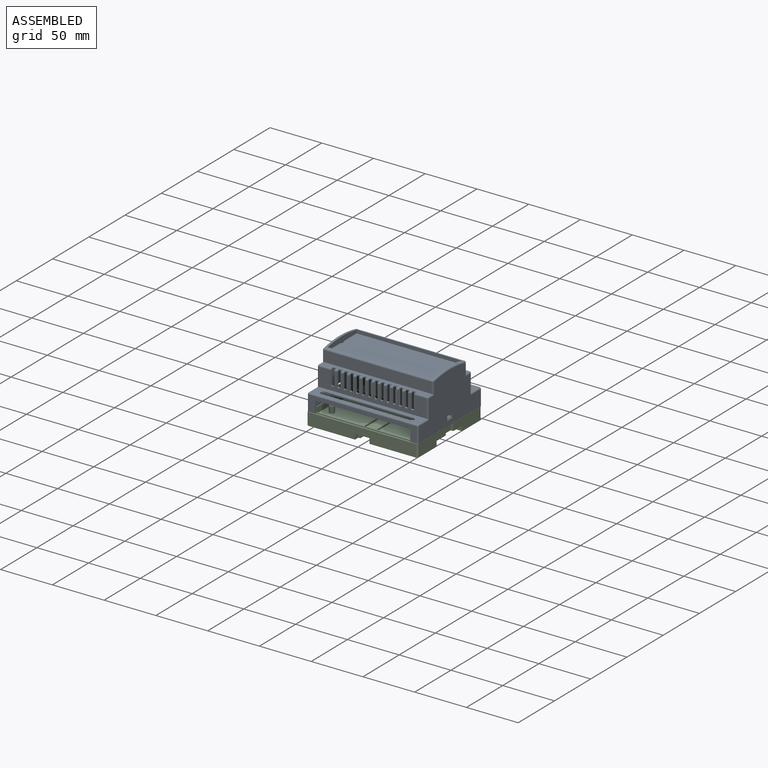
[diagram: assembled view]
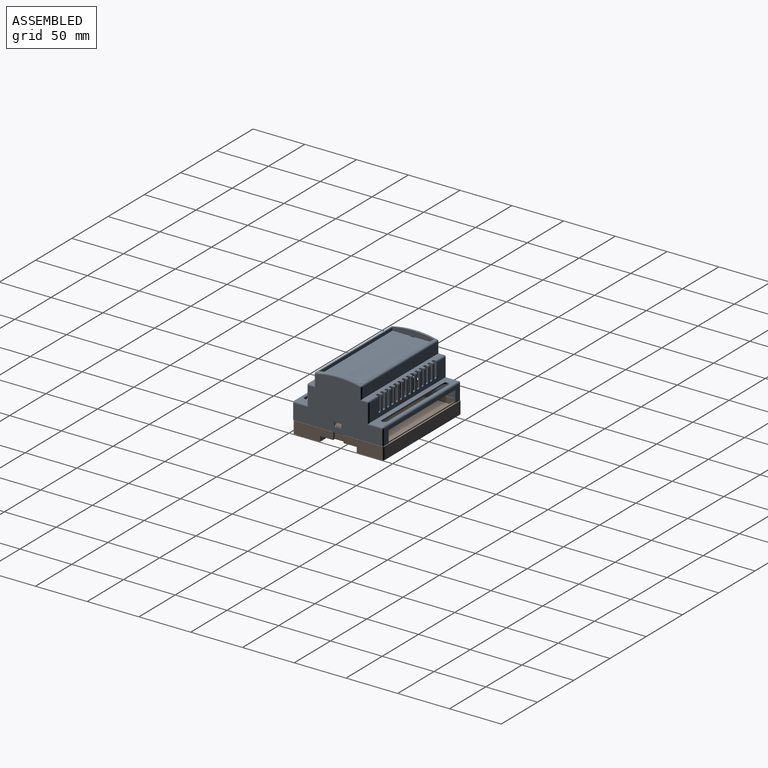
[diagram: assembled view, second angle]
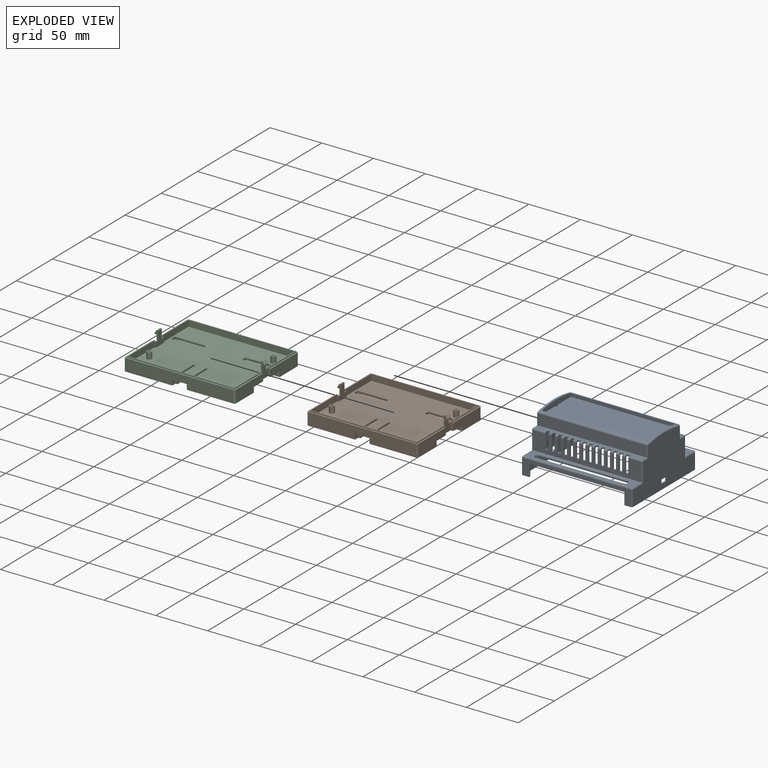
[diagram: exploded view]
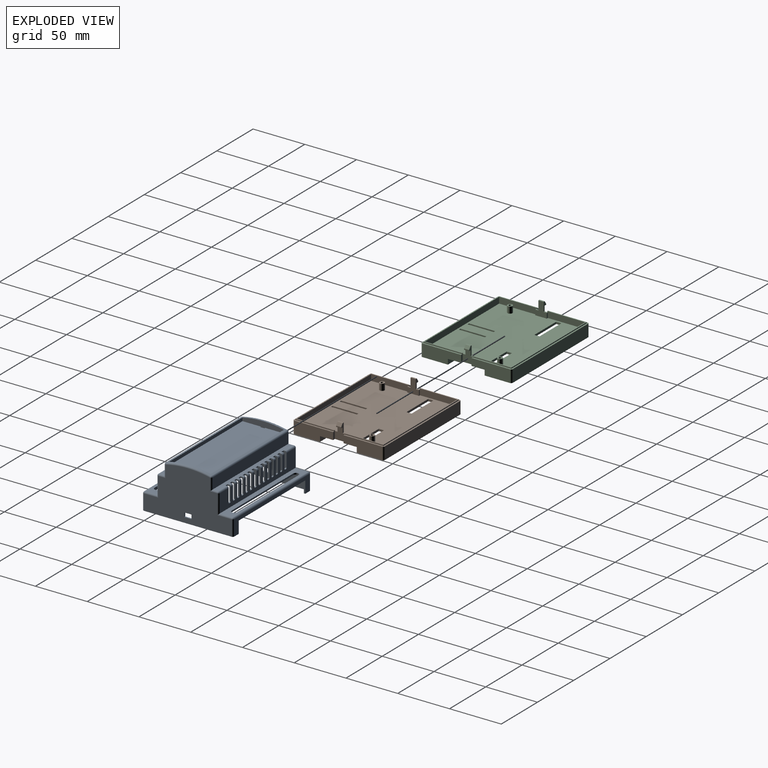
[diagram: exploded view, second angle]
FCSTD DOCUMENT  (FreeCAD 1.0R39109 (Git))
Label: 2.0
License: All rights reserved
LicenseURL: https://en.wikipedia.org/wiki/All_rights_reserved
objects: App::Link×3, Assembly::JointGroup×2, Assembly::AssemblyObject×2, App::FeaturePython×1
EXTERNAL_REF file=2.FCStd obj=Body
EXTERNAL_REF file=1.FCStd obj=Body001

FEATURE [Assembly::JointGroup] Joints001
FEATURE [Assembly::AssemblyObject] Assembly001
  Group = -> [Joints001]
  Origin = -> Origin001
  Type = Assembly
FEATURE [App::Link] Cuerpo
  LinkedObject = -> <external 2.FCStd>#Body
FEATURE [App::FeaturePython] GroundedJoint  # Assembly grounded joint (typed FeaturePython)
  ObjectToGround = -> Cuerpo
FEATURE [Assembly::JointGroup] Joints
  Group = -> [GroundedJoint]
FEATURE [App::Link] Cuerpo001
  LinkedObject = -> <external 2.FCStd>#Body
FEATURE [App::Link] Body001
  LinkPlacement = pos=(53.9821,-0.170981,7.38278) rot=(0,0,-1;1.5708rad)
  LinkedObject = -> <external 1.FCStd>#Body001
  Placement = pos=(53.9821,-0.170981,7.38278) rot=(0,0,-1;1.5708rad)
FEATURE [Assembly::AssemblyObject] Assembly
  Group = -> [Joints,Assembly001,Cuerpo,GroundedJoint,Cuerpo001,Body001]
  Origin = -> Origin
  Type = Assembly

RESOLVED EXTERNAL PARTS (link-assembly join: the EXTERNAL_REF files above that resolve inside this repo's crawl, each included once):
---- part 1.FCStd = doc fcstd_2b78bb30a1ef ----
FCSTD DOCUMENT  (FreeCAD 1.0R39109 (Git))
Label: 1
License: All rights reserved
LicenseURL: https://en.wikipedia.org/wiki/All_rights_reserved
objects: Sketcher::SketchObject×15, PartDesign::Pad×8, PartDesign::Mirrored×7, PartDesign::Pocket×6, PartDesign::Fillet×3, PartDesign::Thickness×2, PartDesign::Plane×1, PartDesign::Body×1
note: 103 computed .brp shape members not serialized (recipe doc carries the construction recipe); baked Part::Feature solids carry a one-line shape summary decoded from their .brp

FEATURE [Sketcher::SketchObject] Sketch
  ArcFitTolerance = 1e-06
  AttachmentSupport = -> [XZ_Plane001]
  FullyConstrained = true
  MakeInternals = false
  MapMode = 5
  Placement = pos=(0,0,0) rot=(1,0,0;1.5708rad)
  sketch-geometry (12):
    g0: LineSegment StartX=-43.85 StartY=0 StartZ=0 EndX=43.85 EndY=0 EndZ=0
    g1: LineSegment StartX=-43.85 StartY=0 StartZ=0 EndX=-43.85 EndY=16.54 EndZ=0
    g2: LineSegment StartX=43.85 StartY=0 StartZ=0 EndX=43.85 EndY=16.54 EndZ=0
    g3: LineSegment StartX=-43.85 StartY=16.54 StartZ=0 EndX=-30 EndY=16.54 EndZ=0
    g4: LineSegment StartX=43.85 StartY=16.54 StartZ=0 EndX=30 EndY=16.54 EndZ=0
    g5: LineSegment StartX=-30 StartY=16.54 StartZ=0 EndX=-30 EndY=35.54 EndZ=0
    g6: LineSegment StartX=30 StartY=16.54 StartZ=0 EndX=30 EndY=35.54 EndZ=0
    g7: LineSegment StartX=-30 StartY=35.54 StartZ=0 EndX=-23 EndY=35.54 EndZ=0
    g8: LineSegment StartX=30 StartY=35.54 StartZ=0 EndX=23 EndY=35.54 EndZ=0
    g9: LineSegment StartX=23 StartY=35.54 StartZ=0 EndX=23 EndY=44.54 EndZ=0
    g10: LineSegment StartX=-23 StartY=35.54 StartZ=0 EndX=-23 EndY=44.54 EndZ=0
    g11: LineSegment StartX=-23 StartY=44.54 StartZ=0 EndX=23 EndY=44.54 EndZ=0
  constraints (36):
    c: Distance(g0) = 87.7
    c: PointOnObject(g0,g-1)
    c: PointOnObject(g0,g-1)
    c: Vertical(g1)
    c: Coincident(g1,g0)
    c: Vertical(g2)
    c: Coincident(g2,g0)
    c: Distance(g3) = 13.85
    c: Horizontal(g3)
    c: Coincident(g3,g1)
    c: Distance(g4) = 13.85
    c: Horizontal(g4)
    c: Coincident(g4,g2)
    c: Vertical(g5)
    c: Coincident(g5,g3)
    c: Vertical(g6)
    c: Coincident(g6,g4)
    c: Distance(g7) = 7
    c: Horizontal(g7)
    c: Coincident(g7,g5)
    c: Distance(g8) = 7
    c: Horizontal(g8)
    c: Coincident(g8,g6)
    c: Vertical(g9)
    c: Coincident(g9,g8)
    c: Vertical(g10)
    c: Coincident(g10,g7)
    c: Coincident(g11,g10)
    c: Coincident(g11,g9)
    c: Equal(g1,g2)
    c: Equal(g5,g6)
    c: Equal(g10,g9)
    c: Distance(g0,g11) = 44.54
    c: DistanceY(g1,g1) = 16.54
    c: Distance(g5,g0) = 35.54
    c: Distance(g10,g-2) = 23
FEATURE [PartDesign::Pad] Pad
  Direction = (0,-1,2e-16)
  Length = 107
  Length2 = 10
  Placement = pos=(0,0,0) rot=(1,0,0;1.5708rad)
  Profile = -> Sketch
  ReferenceAxis = -> Sketch [N_Axis]
  Refine = true
  Suppressed = false
  Type = 0
FEATURE [PartDesign::Thickness] Thickness
  Base = -> Pad
  BaseFeature = -> Pad
  Intersection = false
  Join = 0
  Mode = 0
  Placement = pos=(0,0,0) rot=(1,0,0;1.5708rad)
  Refine = true
  Reversed = true
  SupportTransform = false
  Suppressed = false
  Value = 1.4
FEATURE [PartDesign::Thickness] Thickness001
  Base = -> Thickness [Face1]
  BaseFeature = -> Thickness
  Intersection = false
  Join = 0
  Mode = 0
  Refine = true
  Reversed = true
  SupportTransform = false
  Suppressed = false
  Value = 1.4
FEATURE [Sketcher::SketchObject] Sketch001
  ArcFitTolerance = 1e-06
  AttachmentSupport = -> [Thickness001]
  FullyConstrained = true
  MakeInternals = false
  MapMode = 5
  Placement = pos=(-43.85,0,0) rot=(0.57735,-0.57735,-0.57735;2.0944rad)
  sketch-geometry (4):
    g0: LineSegment StartX=7.575 StartY=0 StartZ=0 EndX=99.425 EndY=0 EndZ=0
    g1: LineSegment StartX=99.425 StartY=0 StartZ=0 EndX=99.425 EndY=11.6 EndZ=0
    g2: LineSegment StartX=99.425 StartY=11.6 StartZ=0 EndX=7.575 EndY=11.6 EndZ=0
    g3: LineSegment StartX=7.575 StartY=11.6 StartZ=0 EndX=7.575 EndY=0 EndZ=0
  constraints (12):
    c: Coincident(g0,g1)
    c: Coincident(g1,g2)
    c: Coincident(g2,g3)
    c: Coincident(g3,g0)
    c: Horizontal(g0)
    c: Horizontal(g2)
    c: Vertical(g1)
    c: Vertical(g3)
    c: PointOnObject(g0,g-1)
    c: DistanceX(g2,g2) = 91.85
    c: DistanceY(g1,g1) = 11.6
    c: DistanceX(g-1,g0) = 7.575
FEATURE [PartDesign::Pocket] Pocket
  BaseFeature = -> Thickness001
  Direction = (1,0,0)
  Length = 5
  Length2 = 5
  Profile = -> Sketch001
  ReferenceAxis = -> Sketch001 [N_Axis]
  Refine = true
  Suppressed = false
  Type = 1
FEATURE [Sketcher::SketchObject] Sketch002
  ArcFitTolerance = 1e-06
  AttachmentSupport = -> [Pocket]
  FullyConstrained = true
  MakeInternals = false
  MapMode = 5
  Placement = pos=(0,4.2e-15,0) rot=(0,0.707107,0.707107;3.14159rad)
  sketch-geometry (4):
    g0: LineSegment StartX=-23 StartY=44.54 StartZ=0 EndX=23 EndY=44.54 EndZ=0
    g1: LineSegment StartX=-23 StartY=44.54 StartZ=0 EndX=-23 EndY=47.04 EndZ=0
    g2: LineSegment StartX=23 StartY=44.54 StartZ=0 EndX=23 EndY=47.04 EndZ=0
    g3: ArcOfCircle CenterX=1.7e-15 CenterY=-46.0243 CenterZ=0 NormalX=0 NormalY=0 NormalZ=1 AngleXU=0 Radius=95.8643 StartAngle=1.32851 EndAngle=1.81308
  constraints (13):
    c: Distance(g0) = 46
    c: Horizontal(g0)
    c: Distance(g-1,g0) = 44.54
    c: Distance(g0,g-2) = 23
    c: Distance(g1) = 2.5
    c: Coincident(g1,g0)
    c: Vertical(g1)
    c: Distance(g2) = 2.5
    c: Coincident(g2,g0)
    c: Vertical(g2)
    c: Coincident(g3,g1)
    c: Coincident(g3,g2)
    c: Distance(g3,g0) = -5.3
FEATURE [PartDesign::Pad] Pad001
  BaseFeature = -> Pocket
  Direction = (0,1,-2e-16)
  Length = 107
  Length2 = 10
  Profile = -> Sketch002
  ReferenceAxis = -> Sketch002 [N_Axis]
  Refine = true
  Suppressed = false
  Type = 0
FEATURE [Sketcher::SketchObject] Sketch003
  ArcFitTolerance = 1e-06
  AttachmentSupport = -> [Pad001]
  ExternalGeometry = -> [Pad001]
  FullyConstrained = true
  MakeInternals = false
  MapMode = 5
  Placement = pos=(0,4.2e-15,0) rot=(0,0.707107,0.707107;3.14159rad)
  sketch-geometry (4):
    g0: LineSegment StartX=-23 StartY=44.54 StartZ=0 EndX=-23 EndY=47.04 EndZ=0
    g1: LineSegment StartX=23 StartY=44.54 StartZ=0 EndX=23 EndY=47.04 EndZ=0
    g2: ArcOfCircle CenterX=4.82e-14 CenterY=-46.0243 CenterZ=0 NormalX=0 NormalY=0 NormalZ=1 AngleXU=0 Radius=95.8643 StartAngle=1.32851 EndAngle=1.81308
    g3: LineSegment StartX=-23 StartY=44.54 StartZ=0 EndX=23 EndY=44.54 EndZ=0
  constraints (9):
    c: Distance(g0) = 2.5
    c: Coincident(g2,g0)
    c: Coincident(g2,g1)
    c: Coincident(g3,g-3)
    c: Coincident(g3,g-3)
    c: Perpendicular(g0,g3) = 4.71239
    c: Distance(g2,g3) = -5.3
    c: Perpendicular(g1,g3) = 4.71239
    c: DistanceY(g1,g1) = 2.5
FEATURE [PartDesign::Pad] Pad002
  BaseFeature = -> Pad001
  Direction = (0,1,-2e-16)
  Length = 3
  Length2 = 10
  Profile = -> Sketch003
  ReferenceAxis = -> Sketch003 [N_Axis]
  Refine = true
  Reversed = true
  Suppressed = false
  Type = 0
FEATURE [Sketcher::SketchObject] Sketch004
  ArcFitTolerance = 1e-06
  AttachmentSupport = -> [Pad002]
  ExternalGeometry = -> [Pad002]
  FullyConstrained = true
  MakeInternals = false
  MapMode = 5
  Placement = pos=(0,-107,0) rot=(1,0,0;1.5708rad)
  sketch-geometry (4):
    g0: LineSegment StartX=-23 StartY=44.54 StartZ=0 EndX=23 EndY=44.54 EndZ=0
    g1: LineSegment StartX=23 StartY=44.54 StartZ=0 EndX=23 EndY=47.04 EndZ=0
    g2: LineSegment StartX=-23 StartY=44.54 StartZ=0 EndX=-23 EndY=47.04 EndZ=0
    g3: ArcOfCircle CenterX=3.7756e-12 CenterY=-46.0243 CenterZ=0 NormalX=0 NormalY=0 NormalZ=1 AngleXU=0 Radius=95.8643 StartAngle=1.32851 EndAngle=1.81308
  constraints (9):
    c: Coincident(g0,g-5)
    c: Coincident(g0,g-6)
    c: Coincident(g1,g0)
    c: Coincident(g1,g-6)
    c: Coincident(g2,g0)
    c: Coincident(g2,g-5)
    c: Coincident(g3,g2)
    c: Coincident(g3,g1)
    c: Tangent(g3,g-4)
FEATURE [PartDesign::Pad] Pad003
  BaseFeature = -> Pad002
  Direction = (0,-1,2e-16)
  Length = 3
  Length2 = 10
  Profile = -> Sketch004
  ReferenceAxis = -> Sketch004 [N_Axis]
  Refine = true
  Reversed = true
  Suppressed = false
  Type = 0
FEATURE [Sketcher::SketchObject] Sketch005
  ArcFitTolerance = 1e-06
  AttachmentSupport = -> [Pad003]
  ExternalGeometry = -> [Pad003]
  FullyConstrained = true
  MakeInternals = false
  MapMode = 5
  Placement = pos=(23,-8.5e-15,1.304e-13) rot=(0.57735,0.57735,0.57735;2.0944rad)
  sketch-geometry (4):
    g0: LineSegment StartX=-104 StartY=49.84 StartZ=0 EndX=-104 EndY=44.54 EndZ=0
    g1: LineSegment StartX=-104 StartY=44.54 StartZ=0 EndX=-3 EndY=44.54 EndZ=0
    g2: LineSegment StartX=-3 StartY=49.84 StartZ=0 EndX=-3 EndY=44.54 EndZ=0
    g3: LineSegment StartX=-104 StartY=49.84 StartZ=0 EndX=-3 EndY=49.84 EndZ=0
  constraints (8):
    c: Coincident(g0,g-5)
    c: Coincident(g0,g-3)
    c: Coincident(g1,g0)
    c: Coincident(g1,g-3)
    c: Coincident(g2,g-4)
    c: Coincident(g2,g1)
    c: Coincident(g3,g0)
    c: Coincident(g3,g2)
FEATURE [PartDesign::Pad] Pad004
  BaseFeature = -> Pad003
  Direction = (1,0,5.8e-15)
  Length = 3
  Length2 = 10
  Profile = -> Sketch005
  ReferenceAxis = -> Sketch005 [N_Axis]
  Refine = true
  Reversed = true
  Suppressed = false
  Type = 0
FEATURE [PartDesign::Mirrored] Mirrored
  BaseFeature = -> Pad004
  MirrorPlane = -> YZ_Plane001
  Originals = -> [Pad004]
  Refine = true
  Suppressed = false
  TransformMode = 0
FEATURE [Sketcher::SketchObject] Sketch006
  ArcFitTolerance = 1e-06
  AttachmentSupport = -> [Mirrored]
  FullyConstrained = true
  MakeInternals = false
  MapMode = 5
  Placement = pos=(0,7.3e-15,16.54) rot=(0,0,1;0rad)
  sketch-geometry (4):
    g0: ArcOfCircle CenterX=37.3 CenterY=-11 CenterZ=0 NormalX=0 NormalY=0 NormalZ=1 AngleXU=0 Radius=2.6 StartAngle=2.2037e-12 EndAngle=3.14159
    g1: ArcOfCircle CenterX=37.3 CenterY=-96 CenterZ=0 NormalX=0 NormalY=0 NormalZ=1 AngleXU=0 Radius=2.6 StartAngle=3.14159 EndAngle=6.28319
    g2: LineSegment StartX=39.9 StartY=-11 StartZ=0 EndX=39.9 EndY=-96 EndZ=0
    g3: LineSegment StartX=34.7 StartY=-11 StartZ=0 EndX=34.7 EndY=-96 EndZ=0
  constraints (10):
    c: Tangent(g0,g2) = 1.5708
    c: Tangent(g0,g3) = -1.5708
    c: Tangent(g1,g2) = 1.5708
    c: Tangent(g1,g3) = -1.5708
    c: Equal(g0,g1)
    c: Vertical(g2)
    c: Distance(g2,g3) = 5.2
    c: DistanceY(g2,g2) = 85
    c: Distance(g0,g-2) = 37.3
    c: Distance(g0,g-1) = 11
FEATURE [PartDesign::Pocket] Pocket001
  BaseFeature = -> Mirrored
  Direction = (0,0,-1)
  Length = 5
  Length2 = 5
  Profile = -> Sketch006
  ReferenceAxis = -> Sketch006 [N_Axis]
  Refine = true
  Suppressed = false
  Type = 0
FEATURE [PartDesign::Mirrored] Mirrored001
  BaseFeature = -> Pocket001
  MirrorPlane = -> YZ_Plane001
  Originals = -> [Pocket001]
  Refine = true
  Suppressed = false
  TransformMode = 0
FEATURE [Sketcher::SketchObject] Sketch007
  ArcFitTolerance = 1e-06
  AttachmentSupport = -> [Mirrored001]
  ExternalGeometry = -> [Mirrored001]
  FullyConstrained = true
  MakeInternals = false
  MapMode = 5
  Placement = pos=(30,0,0) rot=(0.57735,0.57735,0.57735;2.0944rad)
  sketch-geometry (57):
    g0: LineSegment [constr] StartX=-53.5 StartY=35.54 StartZ=0 EndX=-53.5 EndY=16.54 EndZ=0
    g1: LineSegment StartX=-16.4625 StartY=35.54 StartZ=0 EndX=-13.4995 EndY=35.54 EndZ=0
    g2: LineSegment StartX=-13.4995 StartY=35.54 StartZ=0 EndX=-13.4995 EndY=21.04 EndZ=0
    g3: LineSegment StartX=-16.4625 StartY=35.54 StartZ=0 EndX=-16.4625 EndY=21.04 EndZ=0
    g4: ArcOfCircle CenterX=-14.981 CenterY=22.3836 CenterZ=0 NormalX=0 NormalY=0 NormalZ=1 AngleXU=0 Radius=2 StartAngle=3.8782 EndAngle=5.54658
    g5: LineSegment StartX=-22.3885 StartY=35.54 StartZ=0 EndX=-19.4255 EndY=35.54 EndZ=0
    g6: LineSegment StartX=-19.4255 StartY=35.54 StartZ=0 EndX=-19.4255 EndY=21.04 EndZ=0
    g7: LineSegment StartX=-22.3885 StartY=35.54 StartZ=0 EndX=-22.3885 EndY=21.04 EndZ=0
    g8: ArcOfCircle CenterX=-20.907 CenterY=22.3836 CenterZ=0 NormalX=0 NormalY=0 NormalZ=1 AngleXU=0 Radius=2 StartAngle=3.8782 EndAngle=5.54658
    g9: LineSegment StartX=-28.3145 StartY=35.54 StartZ=0 EndX=-25.3515 EndY=35.54 EndZ=0
    g10: LineSegment StartX=-25.3515 StartY=35.54 StartZ=0 EndX=-25.3515 EndY=21.04 EndZ=0
    g11: LineSegment StartX=-28.3145 StartY=35.54 StartZ=0 EndX=-28.3145 EndY=21.04 EndZ=0
    g12: ArcOfCircle CenterX=-26.833 CenterY=22.3836 CenterZ=0 NormalX=0 NormalY=0 NormalZ=1 AngleXU=0 Radius=2 StartAngle=3.8782 EndAngle=5.54658
    g13: LineSegment StartX=-34.2405 StartY=35.54 StartZ=0 EndX=-31.2775 EndY=35.54 EndZ=0
    g14: LineSegment StartX=-34.2405 StartY=35.54 StartZ=0 EndX=-34.2405 EndY=21.04 EndZ=0
    g15: LineSegment StartX=-31.2775 StartY=35.54 StartZ=0 EndX=-31.2775 EndY=21.04 EndZ=0
    g16: ArcOfCircle CenterX=-32.759 CenterY=22.3836 CenterZ=0 NormalX=0 NormalY=0 NormalZ=1 AngleXU=0 Radius=2 StartAngle=3.8782 EndAngle=5.54658
    g17: LineSegment StartX=-40.1665 StartY=35.54 StartZ=0 EndX=-37.2035 EndY=35.54 EndZ=0
    g18: LineSegment StartX=-37.2035 StartY=35.54 StartZ=0 EndX=-37.2035 EndY=21.04 EndZ=0
    g19: LineSegment StartX=-40.1665 StartY=35.54 StartZ=0 EndX=-40.1665 EndY=21.04 EndZ=0
    g20: ArcOfCircle CenterX=-38.685 CenterY=22.3836 CenterZ=0 NormalX=0 NormalY=0 NormalZ=1 AngleXU=0 Radius=2 StartAngle=3.8782 EndAngle=5.54658
    g21: LineSegment StartX=-46.0925 StartY=35.54 StartZ=0 EndX=-43.1295 EndY=35.54 EndZ=0
    g22: LineSegment StartX=-43.1295 StartY=35.54 StartZ=0 EndX=-43.1295 EndY=21.04 EndZ=0
    g23: LineSegment StartX=-46.0925 StartY=35.54 StartZ=0 EndX=-46.0925 EndY=21.04 EndZ=0
    g24: ArcOfCircle CenterX=-44.611 CenterY=22.3836 CenterZ=0 NormalX=0 NormalY=0 NormalZ=1 AngleXU=0 Radius=2 StartAngle=3.8782 EndAngle=5.54658
    g25: LineSegment StartX=-52.0185 StartY=35.54 StartZ=0 EndX=-49.0555 EndY=35.54 EndZ=0
    g26: LineSegment StartX=-49.0555 StartY=35.54 StartZ=0 EndX=-49.0555 EndY=21.04 EndZ=0
    g27: LineSegment StartX=-52.0185 StartY=35.54 StartZ=0 EndX=-52.0185 EndY=21.04 EndZ=0
    g28: ArcOfCircle CenterX=-50.537 CenterY=22.3836 CenterZ=0 NormalX=0 NormalY=0 NormalZ=1 AngleXU=0 Radius=2 StartAngle=3.8782 EndAngle=5.54658
    g29: LineSegment StartX=-57.9445 StartY=35.54 StartZ=0 EndX=-54.9815 EndY=35.54 EndZ=0
    g30: LineSegment StartX=-54.9815 StartY=35.54 StartZ=0 EndX=-54.9815 EndY=21.04 EndZ=0
    g31: LineSegment StartX=-57.9445 StartY=35.54 StartZ=0 EndX=-57.9445 EndY=21.04 EndZ=0
    g32: ArcOfCircle CenterX=-56.463 CenterY=22.3836 CenterZ=0 NormalX=0 NormalY=0 NormalZ=1 AngleXU=0 Radius=2 StartAngle=3.8782 EndAngle=5.54658
    g33: LineSegment StartX=-63.8705 StartY=35.54 StartZ=0 EndX=-60.9075 EndY=35.54 EndZ=0
    g34: LineSegment StartX=-60.9075 StartY=35.54 StartZ=0 EndX=-60.9075 EndY=21.04 EndZ=0
    g35: LineSegment StartX=-63.8705 StartY=35.54 StartZ=0 EndX=-63.8705 EndY=21.04 EndZ=0
    g36: ArcOfCircle CenterX=-62.389 CenterY=22.3836 CenterZ=0 NormalX=0 NormalY=0 NormalZ=1 AngleXU=0 Radius=2 StartAngle=3.8782 EndAngle=5.54658
    g37: LineSegment StartX=-69.7965 StartY=35.54 StartZ=0 EndX=-66.8335 EndY=35.54 EndZ=0
    g38: LineSegment StartX=-66.8335 StartY=35.54 StartZ=0 EndX=-66.8335 EndY=21.04 EndZ=0
    g39: LineSegment StartX=-69.7965 StartY=35.54 StartZ=0 EndX=-69.7965 EndY=21.04 EndZ=0
    g40: ArcOfCircle CenterX=-68.315 CenterY=22.3836 CenterZ=0 NormalX=0 NormalY=0 NormalZ=1 AngleXU=0 Radius=2 StartAngle=3.8782 EndAngle=5.54658
    g41: LineSegment StartX=-75.7225 StartY=35.54 StartZ=0 EndX=-72.7595 EndY=35.54 EndZ=0
    g42: LineSegment StartX=-72.7595 StartY=35.54 StartZ=0 EndX=-72.7595 EndY=21.04 EndZ=0
    g43: LineSegment StartX=-75.7225 StartY=35.54 StartZ=0 EndX=-75.7225 EndY=21.04 EndZ=0
    g44: ArcOfCircle CenterX=-74.241 CenterY=22.3836 CenterZ=0 NormalX=0 NormalY=0 NormalZ=1 AngleXU=0 Radius=2 StartAngle=3.8782 EndAngle=5.54658
    g45: LineSegment StartX=-81.6485 StartY=35.54 StartZ=0 EndX=-78.6855 EndY=35.54 EndZ=0
    g46: LineSegment StartX=-78.6855 StartY=35.54 StartZ=0 EndX=-78.6855 EndY=21.04 EndZ=0
    g47: LineSegment StartX=-81.6485 StartY=35.54 StartZ=0 EndX=-81.6485 EndY=21.04 EndZ=0
    g48: ArcOfCircle CenterX=-80.167 CenterY=22.3836 CenterZ=0 NormalX=0 NormalY=0 NormalZ=1 AngleXU=0 Radius=2 StartAngle=3.8782 EndAngle=5.54658
    g49: LineSegment StartX=-87.5745 StartY=35.54 StartZ=0 EndX=-84.6115 EndY=35.54 EndZ=0
    g50: LineSegment StartX=-84.6115 StartY=35.54 StartZ=0 EndX=-84.6115 EndY=21.04 EndZ=0
    g51: LineSegment StartX=-87.5745 StartY=35.54 StartZ=0 EndX=-87.5745 EndY=21.04 EndZ=0
    g52: ArcOfCircle CenterX=-86.093 CenterY=22.3836 CenterZ=0 NormalX=0 NormalY=0 NormalZ=1 AngleXU=0 Radius=2 StartAngle=3.8782 EndAngle=5.54658
    g53: LineSegment StartX=-93.5005 StartY=35.54 StartZ=0 EndX=-90.5375 EndY=35.54 EndZ=0
    g54: LineSegment StartX=-90.5375 StartY=35.54 StartZ=0 EndX=-90.5375 EndY=21.04 EndZ=0
    g55: LineSegment StartX=-93.5005 StartY=35.54 StartZ=0 EndX=-93.5005 EndY=21.04 EndZ=0
    g56: ArcOfCircle CenterX=-92.019 CenterY=22.3836 CenterZ=0 NormalX=0 NormalY=0 NormalZ=1 AngleXU=0 Radius=2 StartAngle=3.8782 EndAngle=5.54658
  constraints (184):
    c: Symmetric(g-4,g-4,g0)
    c: Symmetric(g-3,g-3,g0)
    c: PointOnObject(g1,g-4)
    c: PointOnObject(g1,g-4)
    c: Distance(g2) = 14.5
    c: Vertical(g2)
    c: Coincident(g2,g1)
    c: Vertical(g3)
    c: Coincident(g3,g1)
    c: Coincident(g4,g3)
    c: Coincident(g4,g2)
    c: DistanceX(g1,g1) = 2.963
    c: Radius(g4) = 2
    c: Distance(g5) = 2.963
    c: Horizontal(g5)
    c: PointOnObject(g5,g-4)
    c: Vertical(g6)
    c: Coincident(g6,g5)
    c: Vertical(g7)
    c: Coincident(g7,g5)
    c: Equal(g2,g3)
    c: Equal(g3,g6)
    c: Equal(g6,g7)
    c: Distance(g3,g6) = 2.963
    c: Coincident(g8,g7)
    c: Coincident(g8,g6)
    c: Equal(g4,g8)
    c: Horizontal(g9)
    c: PointOnObject(g9,g-4)
    c: Vertical(g10)
    c: Coincident(g10,g9)
    c: Vertical(g11)
    c: Coincident(g11,g9)
    c: Coincident(g12,g11)
    c: Coincident(g12,g10)
    c: Equal(g5,g9)
    c: Equal(g6,g10)
    c: Equal(g10,g11)
    c: Equal(g4,g12)
    c: Distance(g7,g10) = 2.963
    c: PointOnObject(g13,g-4)
    c: PointOnObject(g13,g-4)
    c: Vertical(g14)
    c: Coincident(g14,g13)
    c: Vertical(g15)
    c: Coincident(g15,g13)
    c: Coincident(g16,g14)
    c: Coincident(g16,g15)
    c: Equal(g15,g14)
    c: Equal(g14,g2)
    c: Equal(g1,g13)
    c: Distance(g11,g15) = 2.963
    c: Equal(g4,g16)
    c: PointOnObject(g17,g-4)
    c: PointOnObject(g17,g-4)
    c: Vertical(g18)
    c: Coincident(g18,g17)
    c: Vertical(g19)
    c: Coincident(g19,g17)
    c: Coincident(g20,g19)
    c: Coincident(g20,g18)
    c: Distance(g14,g18) = 2.963
    c: Equal(g2,g18)
    c: Equal(g18,g19)
    c: Equal(g1,g17)
    c: Equal(g4,g20)
    c: PointOnObject(g21,g-4)
    c: PointOnObject(g21,g-4)
    c: Vertical(g22)
    c: Coincident(g22,g21)
    c: Vertical(g23)
    c: Coincident(g23,g21)
    c: Coincident(g24,g23)
    c: Coincident(g24,g22)
    c: Equal(g1,g21)
    c: Equal(g22,g23)
    c: Equal(g23,g2)
    c: Distance(g19,g22) = 2.963
    c: Equal(g4,g24)
    c: PointOnObject(g25,g-4)
    c: PointOnObject(g25,g-4)
    c: Vertical(g26)
    c: Coincident(g26,g25)
    c: Vertical(g27)
    c: Coincident(g27,g25)
    c: Coincident(g28,g27)
    c: Coincident(g28,g26)
    c: Equal(g2,g26)
    c: Equal(g26,g27)
    c: Equal(g1,g25)
    c: Equal(g4,g28)
    c: Distance(g23,g26) = 2.963
    c: PointOnObject(g29,g-4)
    c: PointOnObject(g29,g-4)
    c: Coincident(g30,g29)
    c: Vertical(g30)
    c: Coincident(g31,g29)
    c: Vertical(g31)
    c: Equal(g30,g31)
    c: Equal(g31,g3)
    c: Coincident(g32,g31)
    c: Coincident(g32,g30)
    c: Equal(g4,g32)
    c: Equal(g29,g1)
    c: Distance(g27,g30) = 2.963
    c: PointOnObject(g33,g-4)
    c: PointOnObject(g33,g-4)
    c: Coincident(g34,g33)
    c: Vertical(g34)
    c: Coincident(g35,g33)
    c: Vertical(g35)
    c: Equal(g35,g34)
    c: Equal(g34,g31)
    c: Equal(g33,g29)
    c: Coincident(g36,g35)
    c: Coincident(g36,g34)
    c: Equal(g32,g36)
    c: Distance(g31,g34) = 2.963
    c: PointOnObject(g37,g-4)
    c: PointOnObject(g37,g-4)
    c: Coincident(g38,g37)
    c: Vertical(g38)
    c: Coincident(g39,g37)
    c: Vertical(g39)
    c: Coincident(g40,g39)
    c: Coincident(g40,g38)
    c: Equal(g38,g39)
    c: Equal(g39,g35)
    c: Equal(g40,g36)
    c: Equal(g33,g37)
    c: Distance(g35,g38) = 2.963
    c: PointOnObject(g41,g-4)
    c: PointOnObject(g41,g-4)
    c: Coincident(g42,g41)
    c: Vertical(g42)
    c: Coincident(g43,g41)
    c: Vertical(g43)
    c: Coincident(g44,g43)
    c: Coincident(g44,g42)
    c: Equal(g43,g42)
    c: Equal(g42,g39)
    c: Equal(g41,g37)
    c: Equal(g44,g40)
    c: Distance(g39,g42) = 2.963
    c: PointOnObject(g45,g-4)
    c: PointOnObject(g45,g-4)
    c: Coincident(g46,g45)
    c: Vertical(g46)
    c: Coincident(g47,g45)
    c: Vertical(g47)
    c: Coincident(g48,g47)
    c: Coincident(g48,g46)
    c: Equal(g47,g46)
    c: Equal(g46,g43)
    c: Equal(g45,g41)
    c: Equal(g44,g48)
    c: Distance(g43,g46) = 2.963
    c: PointOnObject(g49,g-4)
    c: PointOnObject(g49,g-4)
    c: Coincident(g50,g49)
    c: Vertical(g50)
    c: Coincident(g51,g49)
    c: Vertical(g51)
    c: Coincident(g52,g51)
    c: Coincident(g52,g50)
    c: Equal(g51,g50)
    c: Equal(g50,g47)
    c: Equal(g49,g45)
    c: Equal(g48,g52)
    c: Distance(g47,g50) = 2.963
    c: PointOnObject(g53,g-4)
    c: PointOnObject(g53,g-4)
    c: Coincident(g54,g53)
    c: Vertical(g54)
    c: Coincident(g55,g53)
    c: Vertical(g55)
    c: Coincident(g56,g55)
    c: Coincident(g56,g54)
    c: Equal(g55,g54)
    c: Equal(g54,g51)
    c: Equal(g56,g52)
    c: Equal(g53,g49)
    c: Distance(g51,g54) = 2.963
    c: Distance(g0,g27) = 1.4815
FEATURE [PartDesign::Pocket] Pocket002
  BaseFeature = -> Mirrored001
  Direction = (-1,0,0)
  Length = 2.963
  Length2 = 5
  Profile = -> Sketch007
  ReferenceAxis = -> Sketch007 [N_Axis]
  Refine = true
  Suppressed = false
  Type = 0
FEATURE [PartDesign::Mirrored] Mirrored002
  BaseFeature = -> Pocket002
  MirrorPlane = -> YZ_Plane001
  Originals = -> [Pocket002]
  Refine = true
  Suppressed = false
  TransformMode = 0
FEATURE [PartDesign::Fillet] Fillet
  Base = -> Mirrored002 [Edge272,Edge110,Edge99,Edge166,Edge114,Edge118,Edge122,Edge126,Edge130,Edge134,Edge138,Edge142,Edge146,Edge150,Edge154,Edge158,Edge162,Edge20,Edge98,Edge97,Edge96]
  BaseFeature = -> Mirrored002
  Radius = 1.5
  Refine = true
  SupportTransform = false
  Suppressed = false
  UseAllEdges = false
FEATURE [PartDesign::Mirrored] Mirrored003
  BaseFeature = -> Fillet
  MirrorPlane = -> YZ_Plane001
  Originals = -> [Fillet]
  Refine = true
  Suppressed = false
  TransformMode = 0
FEATURE [Sketcher::SketchObject] Sketch008
  ArcFitTolerance = 1e-06
  AttachmentSupport = -> [Mirrored003]
  FullyConstrained = true
  MakeInternals = false
  MapMode = 5
  Placement = pos=(0,-107,3.53e-14) rot=(1,0,0;1.5708rad)
  sketch-geometry (4):
    g0: LineSegment StartX=-3.5 StartY=9 StartZ=0 EndX=3.5 EndY=9 EndZ=0
    g1: LineSegment StartX=-3.5 StartY=9 StartZ=0 EndX=-3.5 EndY=5 EndZ=0
    g2: LineSegment StartX=3.5 StartY=9 StartZ=0 EndX=3.5 EndY=5 EndZ=0
    g3: LineSegment StartX=-3.5 StartY=5 StartZ=0 EndX=3.5 EndY=5 EndZ=0
  constraints (12):
    c: Distance(g0) = 7
    c: Horizontal(g0)
    c: Vertical(g1)
    c: Coincident(g1,g0)
    c: Distance(g2) = 4
    c: Vertical(g2)
    c: Coincident(g2,g0)
    c: Coincident(g3,g1)
    c: Coincident(g3,g2)
    c: Distance(g-2,g1) = 3.5
    c: Equal(g2,g1)
    c: Distance(g-1,g3) = 5
FEATURE [PartDesign::Pocket] Pocket003
  BaseFeature = -> Mirrored003
  Direction = (0,1,-2e-16)
  Length = 5
  Length2 = 5
  Profile = -> Sketch008
  ReferenceAxis = -> Sketch008 [N_Axis]
  Refine = true
  Suppressed = false
  Type = 1
FEATURE [Sketcher::SketchObject] Sketch009
  ArcFitTolerance = 1e-06
  AttachmentSupport = -> [Pocket003]
  ExternalGeometry = -> [Pocket003]
  FullyConstrained = true
  MakeInternals = false
  MapMode = 5
  Placement = pos=(0,-104,0) rot=(1,0,0;1.5708rad)
  sketch-geometry (8):
    g0: LineSegment StartX=-23 StartY=47.04 StartZ=0 EndX=-23 EndY=49.84 EndZ=0
    g1: LineSegment StartX=-23 StartY=49.84 StartZ=0 EndX=-20 EndY=49.84 EndZ=0
    g2: LineSegment StartX=-20 StartY=49.84 StartZ=0 EndX=-20 EndY=47.7305 EndZ=0
    g3: ArcOfCircle CenterX=9.71783e-05 CenterY=-46.0247 CenterZ=0 NormalX=0 NormalY=0 NormalZ=1 AngleXU=0 Radius=95.8647 StartAngle=1.78097 EndAngle=1.81308
    g4: LineSegment StartX=20 StartY=49.84 StartZ=0 EndX=23 EndY=49.84 EndZ=0
    g5: LineSegment StartX=23 StartY=49.84 StartZ=0 EndX=23 EndY=47.04 EndZ=0
    g6: LineSegment StartX=20 StartY=49.84 StartZ=0 EndX=20 EndY=47.7305 EndZ=0
    g7: ArcOfCircle CenterX=-7.58465e-05 CenterY=-46.0246 CenterZ=0 NormalX=0 NormalY=0 NormalZ=1 AngleXU=0 Radius=95.8646 StartAngle=1.32851 EndAngle=1.36062
  constraints (19):
    c: Coincident(g0,g-6)
    c: Coincident(g0,g-6)
    c: Coincident(g1,g0)
    c: Coincident(g1,g-5)
    c: Coincident(g2,g1)
    c: Coincident(g2,g-4)
    c: Coincident(g3,g0)
    c: Coincident(g3,g2)
    c: Tangent(g3,g-3)
    c: Coincident(g4,g-8)
    c: Coincident(g4,g-9)
    c: Coincident(g5,g4)
    c: PointOnObject(g5,g-10)
    c: Vertical(g5)
    c: Coincident(g6,g4)
    c: Coincident(g6,g-10)
    c: Coincident(g7,g6)
    c: Coincident(g7,g5)
    c: Tangent(g7,g-10)
FEATURE [PartDesign::Pocket] Pocket004
  BaseFeature = -> Pocket003
  Direction = (0,1,-2e-16)
  Length = 0
  Length2 = 5
  Profile = -> Sketch009
  ReferenceAxis = -> Sketch009 [N_Axis]
  Refine = true
  Suppressed = false
  Type = 3
  UpToFace = -> Pocket003 [Face89]
FEATURE [PartDesign::Mirrored] Mirrored004
  BaseFeature = -> Pocket004
  MirrorPlane = -> YZ_Plane001
  Originals = -> [Fillet]
  Refine = true
  Suppressed = false
  TransformMode = 0
FEATURE [PartDesign::Fillet] Fillet001
  Base = -> Mirrored004 [Edge26,Edge28,Edge32,Edge34,Edge33,Edge5,Edge22,Edge24,Edge25,Edge29]
  BaseFeature = -> Mirrored004
  Radius = 1.5
  Refine = true
  SupportTransform = false
  Suppressed = false
  UseAllEdges = false
FEATURE [Sketcher::SketchObject] Sketch010
  ArcFitTolerance = 1e-06
  FullyConstrained = true
  MakeInternals = false
  MapMode = 5
  Placement = pos=(0,1.96e-14,44.54) rot=(0,0,1;0rad)
  sketch-geometry (8):
    g0: LineSegment StartX=-2 StartY=-3 StartZ=0 EndX=2 EndY=-3 EndZ=0
    g1: LineSegment StartX=-2 StartY=-3 StartZ=0 EndX=-2 EndY=-4 EndZ=0
    g2: LineSegment StartX=2 StartY=-3 StartZ=0 EndX=2 EndY=-4 EndZ=0
    g3: LineSegment StartX=-2 StartY=-4 StartZ=0 EndX=2 EndY=-4 EndZ=0
    g4: LineSegment StartX=2 StartY=-104 StartZ=0 EndX=-2 EndY=-104 EndZ=0
    g5: LineSegment StartX=2 StartY=-104 StartZ=0 EndX=2 EndY=-103 EndZ=0
    g6: LineSegment StartX=-2 StartY=-104 StartZ=0 EndX=-2 EndY=-103 EndZ=0
    g7: LineSegment StartX=2 StartY=-103 StartZ=0 EndX=-2 EndY=-103 EndZ=0
  constraints (24):
    c: PointOnObject(g0,g-3)
    c: PointOnObject(g0,g-3)
    c: Distance(g1) = 1
    c: Vertical(g1)
    c: Coincident(g1,g0)
    c: Distance(g2) = 1
    c: Vertical(g2)
    c: Coincident(g2,g0)
    c: Coincident(g3,g1)
    c: Coincident(g3,g2)
    c: Distance(g-2,g1) = 2
    c: Distance(g0,g0) = 4
    c: PointOnObject(g4,g-4)
    c: PointOnObject(g4,g-4)
    c: Distance(g5) = 1
    c: Vertical(g5)
    c: Coincident(g5,g4)
    c: Distance(g6) = 1
    c: Vertical(g6)
    c: Coincident(g6,g4)
    c: Coincident(g7,g5)
    c: Coincident(g7,g6)
    c: Distance(g-2,g5) = 2
    c: DistanceX(g4,g4) = 4
FEATURE [PartDesign::Pocket] Pocket005
  BaseFeature = -> Fillet001
  Direction = (0,0,-1)
  Length = 5
  Length2 = 5
  Profile = -> Sketch010
  ReferenceAxis = -> Sketch010 [N_Axis]
  Refine = true
  Suppressed = false
  Type = 0
FEATURE [PartDesign::Fillet] Fillet002
  Base = -> Pocket005 [Edge3,Edge78,Edge86,Edge10]
  BaseFeature = -> Pocket005
  Radius = 1.5
  Refine = true
  SupportTransform = false
  Suppressed = false
  UseAllEdges = false
FEATURE [Sketcher::SketchObject] Sketch011
  ArcFitTolerance = 1e-06
  FullyConstrained = true
  MakeInternals = false
  MapMode = 5
  Placement = pos=(0,-105.6,0) rot=(0,0.707107,0.707107;3.14159rad)
  sketch-geometry (9):
    g0: LineSegment [constr] StartX=-12 StartY=43.14 StartZ=0 EndX=-12 EndY=10.2 EndZ=0
    g1: LineSegment StartX=-11 StartY=43.14 StartZ=0 EndX=-11 EndY=10.2 EndZ=0
    g2: LineSegment StartX=-10 StartY=43.14 StartZ=0 EndX=-10 EndY=10.2 EndZ=0
    g3: LineSegment StartX=-11 StartY=10.2 StartZ=0 EndX=-10 EndY=10.2 EndZ=0
    g4: LineSegment StartX=-11 StartY=43.14 StartZ=0 EndX=-10 EndY=43.14 EndZ=0
    g5: LineSegment StartX=-13 StartY=43.14 StartZ=0 EndX=-13 EndY=10.2 EndZ=0
    g6: LineSegment StartX=-14 StartY=43.14 StartZ=0 EndX=-14 EndY=10.2 EndZ=0
    g7: LineSegment StartX=-13 StartY=10.2 StartZ=0 EndX=-14 EndY=10.2 EndZ=0
    g8: LineSegment StartX=-13 StartY=43.14 StartZ=0 EndX=-14 EndY=43.14 EndZ=0
  constraints (25):
    c: Distance(g0) = 32.94
    c: Vertical(g0)
    c: PointOnObject(g0,g-3)
    c: Distance(g-2,g0) = 12
    c: PointOnObject(g1,g-3)
    c: Vertical(g1)
    c: PointOnObject(g2,g-3)
    c: Vertical(g2)
    c: Equal(g2,g0)
    c: Distance(g3) = 1
    c: Coincident(g3,g1)
    c: Perpendicular(g2,g3) = 1.5708
    c: Coincident(g4,g1)
    c: Coincident(g4,g2)
    c: Distance(g1,g0) = 1
    c: Vertical(g5)
    c: Vertical(g6)
    c: Distance(g7) = 1
    c: Coincident(g7,g5)
    c: Perpendicular(g6,g7) = 4.71239
    c: Coincident(g8,g5)
    c: Coincident(g8,g6)
    c: Symmetric(g1,g5,g0)
    c: Equal(g0,g1)
    c: Equal(g6,g0)
FEATURE [PartDesign::Pad] Pad005
  BaseFeature = -> Fillet002
  Direction = (0,1,-2e-16)
  Length = 0.63
  Length2 = 10
  Profile = -> Sketch011
  ReferenceAxis = -> Sketch011 [N_Axis]
  Refine = true
  Suppressed = false
  Type = 0
FEATURE [PartDesign::Mirrored] Mirrored005
  BaseFeature = -> Pad005
  MirrorPlane = -> YZ_Plane001
  Originals = -> [Pad005]
  Refine = true
  Suppressed = false
  TransformMode = 0
FEATURE [Sketcher::SketchObject] Sketch012
  ArcFitTolerance = 1e-06
  AttachmentSupport = -> [Mirrored005]
  ExternalGeometry = -> [Mirrored005]
  FullyConstrained = true
  MakeInternals = false
  MapMode = 5
  Placement = pos=(0,-1.4,0) rot=(1,0,0;1.5708rad)
  sketch-geometry (16):
    g0: LineSegment StartX=-14 StartY=43.14 StartZ=0 EndX=-13 EndY=43.14 EndZ=0
    g1: LineSegment StartX=-11 StartY=43.14 StartZ=0 EndX=-10 EndY=43.14 EndZ=0
    g2: LineSegment StartX=-14 StartY=43.14 StartZ=0 EndX=-14 EndY=10.2 EndZ=0
    g3: LineSegment StartX=-14 StartY=10.2 StartZ=0 EndX=-13 EndY=10.2 EndZ=0
    g4: LineSegment StartX=-13 StartY=10.2 StartZ=0 EndX=-13 EndY=43.14 EndZ=0
    g5: LineSegment StartX=-11 StartY=43.14 StartZ=0 EndX=-11 EndY=10.2 EndZ=0
    g6: LineSegment StartX=-11 StartY=10.2 StartZ=0 EndX=-10 EndY=10.2 EndZ=0
    g7: LineSegment StartX=-10 StartY=10.2 StartZ=0 EndX=-10 EndY=43.14 EndZ=0
    g8: LineSegment StartX=10 StartY=43.14 StartZ=0 EndX=11 EndY=43.14 EndZ=0
    g9: LineSegment StartX=10 StartY=43.14 StartZ=0 EndX=10 EndY=10.2 EndZ=0
    g10: LineSegment StartX=10 StartY=10.2 StartZ=0 EndX=11 EndY=10.2 EndZ=0
    g11: LineSegment StartX=11 StartY=10.2 StartZ=0 EndX=11 EndY=43.14 EndZ=0
    g12: LineSegment StartX=13 StartY=43.14 StartZ=0 EndX=14 EndY=43.14 EndZ=0
    g13: LineSegment StartX=13 StartY=43.14 StartZ=0 EndX=13 EndY=10.2 EndZ=0
    g14: LineSegment StartX=13 StartY=10.2 StartZ=0 EndX=14 EndY=10.2 EndZ=0
    g15: LineSegment StartX=14 StartY=10.2 StartZ=0 EndX=14 EndY=43.14 EndZ=0
  constraints (32):
    c: Coincident(g0,g-16)
    c: Coincident(g0,g-15)
    c: Coincident(g1,g-13)
    c: Coincident(g1,g-14)
    c: Coincident(g2,g0)
    c: Coincident(g2,g-18)
    c: Coincident(g3,g2)
    c: Coincident(g3,g-18)
    c: Coincident(g4,g3)
    c: Coincident(g4,g0)
    c: Coincident(g5,g1)
    c: Coincident(g5,g-17)
    c: Coincident(g6,g5)
    c: Coincident(g6,g-17)
    c: Coincident(g7,g6)
    c: Coincident(g7,g1)
    c: Coincident(g8,g-7)
    c: Coincident(g8,g-8)
    c: Coincident(g9,g8)
    c: Coincident(g9,g-10)
    c: Coincident(g10,g9)
    c: Coincident(g10,g-10)
    c: Coincident(g11,g10)
    c: Coincident(g11,g8)
    c: Coincident(g12,g-5)
    c: Coincident(g12,g-5)
    c: Coincident(g13,g12)
    c: Coincident(g13,g-9)
    c: Coincident(g14,g13)
    c: Coincident(g14,g-9)
    c: Coincident(g15,g14)
    c: Coincident(g15,g12)
FEATURE [PartDesign::Pad] Pad006
  BaseFeature = -> Mirrored005
  Direction = (0,-1,2e-16)
  Length = 0.63
  Length2 = 10
  Profile = -> Sketch012
  ReferenceAxis = -> Sketch012 [N_Axis]
  Refine = true
  Suppressed = false
  Type = 0
FEATURE [Sketcher::SketchObject] Sketch013
  ArcFitTolerance = 1e-06
  AttachmentSupport = -> [Pad006]
  ExternalGeometry = -> [Pad006]
  FullyConstrained = true
  MakeInternals = false
  MapMode = 5
  Placement = pos=(28.6,0,0) rot=(0.57735,-0.57735,-0.57735;2.0944rad)
  sketch-geometry (9):
    g0: LineSegment [constr] StartX=4.76 StartY=34.14 StartZ=0 EndX=4.76 EndY=19.14 EndZ=0
    g1: LineSegment StartX=2.76 StartY=34.14 StartZ=0 EndX=3.76 EndY=34.14 EndZ=0
    g2: LineSegment StartX=2.76 StartY=34.14 StartZ=0 EndX=2.76 EndY=19.14 EndZ=0
    g3: LineSegment StartX=3.76 StartY=34.14 StartZ=0 EndX=3.76 EndY=19.14 EndZ=0
    g4: LineSegment StartX=2.76 StartY=19.14 StartZ=0 EndX=3.76 EndY=19.14 EndZ=0
    g5: LineSegment StartX=6.76 StartY=34.14 StartZ=0 EndX=6.76 EndY=19.14 EndZ=0
    g6: LineSegment StartX=6.76 StartY=19.14 StartZ=0 EndX=5.76 EndY=19.14 EndZ=0
    g7: LineSegment StartX=5.76 StartY=34.14 StartZ=0 EndX=5.76 EndY=19.14 EndZ=0
    g8: LineSegment StartX=6.76 StartY=34.14 StartZ=0 EndX=5.76 EndY=34.14 EndZ=0
  constraints (27):
    c: Vertical(g0)
    c: PointOnObject(g0,g-3)
    c: Distance(g0,g-4) = 3.36
    c: Distance(g1) = 1
    c: Horizontal(g1)
    c: PointOnObject(g1,g-3)
    c: Vertical(g2)
    c: Coincident(g2,g1)
    c: Distance(g3) = 15
    c: Vertical(g3)
    c: Coincident(g3,g1)
    c: Coincident(g4,g2)
    c: Coincident(g4,g3)
    c: Equal(g0,g3)
    c: Equal(g3,g2)
    c: Distance(g0,g3) = 1
    c: Distance(g8) = 1
    c: Horizontal(g8)
    c: Vertical(g5)
    c: Coincident(g5,g8)
    c: Distance(g7) = 15
    c: Vertical(g7)
    c: Coincident(g7,g8)
    c: Coincident(g6,g5)
    c: Coincident(g6,g7)
    c: Equal(g7,g5)
    c: Symmetric(g6,g3,g0)
FEATURE [PartDesign::Pad] Pad007
  BaseFeature = -> Pad006
  Direction = (-1,0,0)
  Length = 2.66
  Length2 = 10
  Profile = -> Sketch013
  ReferenceAxis = -> Sketch013 [N_Axis]
  Refine = true
  Suppressed = false
  Type = 0
FEATURE [PartDesign::Plane] DatumPlane
  AttachmentOffset = pos=(0,0,53.5) rot=(0,0,1;0rad)
  AttachmentSupport = -> [Sketch013]
  Length = 60.3537
  MapMode = 4
  Placement = pos=(28.6,-53.5,0) rot=(0.57735,-0.57735,0.57735;2.0944rad)
  ResizeMode = 0
  Width = 63.9537
FEATURE [PartDesign::Mirrored] Mirrored006
  BaseFeature = -> Pad007
  MirrorPlane = -> DatumPlane
  Originals = -> [Pad007]
  Refine = true
  Suppressed = false
  TransformMode = 0
FEATURE [Sketcher::SketchObject] Sketch014
  ArcFitTolerance = 1e-06
  AttachmentSupport = -> [Mirrored006]
  ExternalGeometry = -> [Mirrored006]
  FullyConstrained = true
  MakeInternals = false
  MapMode = 5
  Placement = pos=(-28.6,0,0) rot=(0.57735,0.57735,0.57735;2.0944rad)
  sketch-geometry (16):
    g0: LineSegment StartX=-104.24 StartY=34.14 StartZ=0 EndX=-103.24 EndY=34.14 EndZ=0
    g1: LineSegment StartX=-104.24 StartY=34.14 StartZ=0 EndX=-104.24 EndY=19.14 EndZ=0
    g2: LineSegment StartX=-104.24 StartY=19.14 StartZ=0 EndX=-103.24 EndY=19.14 EndZ=0
    g3: LineSegment StartX=-103.24 StartY=19.14 StartZ=0 EndX=-103.24 EndY=34.14 EndZ=0
    g4: LineSegment StartX=-101.24 StartY=34.14 StartZ=0 EndX=-100.24 EndY=34.14 EndZ=0
    g5: LineSegment StartX=-101.24 StartY=34.14 StartZ=0 EndX=-101.24 EndY=19.14 EndZ=0
    g6: LineSegment StartX=-101.24 StartY=19.14 StartZ=0 EndX=-100.24 EndY=19.14 EndZ=0
    g7: LineSegment StartX=-100.24 StartY=19.14 StartZ=0 EndX=-100.24 EndY=34.14 EndZ=0
    g8: LineSegment StartX=-6.76 StartY=34.14 StartZ=0 EndX=-5.76 EndY=34.14 EndZ=0
    g9: LineSegment StartX=-6.76 StartY=34.14 StartZ=0 EndX=-6.76 EndY=19.14 EndZ=0
    g10: LineSegment StartX=-6.76 StartY=19.14 StartZ=0 EndX=-5.76 EndY=19.14 EndZ=0
    g11: LineSegment StartX=-5.76 StartY=19.14 StartZ=0 EndX=-5.76 EndY=34.14 EndZ=0
    g12: LineSegment StartX=-3.76 StartY=34.14 StartZ=0 EndX=-2.76 EndY=34.14 EndZ=0
    g13: LineSegment StartX=-3.76 StartY=34.14 StartZ=0 EndX=-3.76 EndY=19.14 EndZ=0
    g14: LineSegment StartX=-3.76 StartY=19.14 StartZ=0 EndX=-2.76 EndY=19.14 EndZ=0
    g15: LineSegment StartX=-2.76 StartY=19.14 StartZ=0 EndX=-2.76 EndY=34.14 EndZ=0
  constraints (32):
    c: Coincident(g0,g-6)
    c: Coincident(g0,g-6)
    c: Coincident(g1,g0)
    c: Coincident(g1,g-5)
    c: Coincident(g2,g1)
    c: Coincident(g2,g-4)
    c: Coincident(g3,g2)
    c: Coincident(g3,g0)
    c: Coincident(g4,g-9)
    c: Coincident(g4,g-8)
    c: Coincident(g5,g4)
    c: Coincident(g5,g-10)
    c: Coincident(g6,g5)
    c: Coincident(g6,g-10)
    c: Coincident(g7,g6)
    c: Coincident(g7,g4)
    c: Coincident(g8,g-14)
    c: Coincident(g8,g-14)
    c: Coincident(g9,g8)
    c: Coincident(g9,g-13)
    c: Coincident(g10,g9)
    c: Coincident(g10,g-12)
    c: Coincident(g11,g10)
    c: Coincident(g11,g8)
    c: Coincident(g12,g-17)
    c: Coincident(g12,g-16)
    c: Coincident(g13,g12)
    c: Coincident(g13,g-18)
    c: Coincident(g14,g13)
    c: Coincident(g14,g-18)
    c: Coincident(g15,g14)
    c: Coincident(g15,g12)
FEATURE [PartDesign::Body] Body001
  AllowCompound = false
  Group = -> [Sketch,Pad,Thickness,Thickness001,Sketch001,Pocket,Sketch002,Pad001,Sketch003,Pad002,Sketch004,Pad003,Sketch005,Pad004,Mirrored,Sketch006,Pocket001,Mirrored001,Sketch007,Pocket002,Mirrored002,Fillet,Mirrored003,Sketch008,Pocket003,Sketch009,Pocket004,Mirrored004,Fillet001,Sketch010,Pocket005,Fillet002,Sketch011,Pad005,Mirrored005,Sketch012,Pad006,Sketch013,Pad007,DatumPlane,Mirrored006,Sketch014]
  Origin = -> Origin001
  Tip = -> Mirrored006
---- part 2.FCStd = doc fcstd_7149e9970b10 ----
FCSTD DOCUMENT  (FreeCAD 1.0R39109 (Git))
Label: Parte inferior
License: All rights reserved
LicenseURL: https://en.wikipedia.org/wiki/All_rights_reserved
objects: Sketcher::SketchObject×11, PartDesign::Pad×11, PartDesign::Mirrored×8, PartDesign::Chamfer×1, PartDesign::Fillet×1, PartDesign::Body×1
note: 78 computed .brp shape members not serialized (recipe doc carries the construction recipe); baked Part::Feature solids carry a one-line shape summary decoded from their .brp

FEATURE [Sketcher::SketchObject] Sketch
  ArcFitTolerance = 1e-06
  AttachmentSupport = -> [XY_Plane]
  FullyConstrained = true
  MakeInternals = false
  MapMode = 5
  sketch-geometry (21):
    g0: LineSegment StartX=-51.1 StartY=41.5 StartZ=0 EndX=-51.1 EndY=-41.5 EndZ=0
    g1: LineSegment StartX=-51.1 StartY=-41.5 StartZ=0 EndX=51.1 EndY=-41.5 EndZ=0
    g2: LineSegment StartX=51.1 StartY=-41.5 StartZ=0 EndX=51.1 EndY=41.5 EndZ=0
    g3: LineSegment StartX=51.1 StartY=41.5 StartZ=0 EndX=-51.1 EndY=41.5 EndZ=0
    g4: GeomPoint [constr] X=0 Y=0 Z=0
    g5: LineSegment StartX=19.1 StartY=20 StartZ=0 EndX=19.1 EndY=15 EndZ=0
    g6: LineSegment StartX=19.1 StartY=15 StartZ=0 EndX=49.1 EndY=15 EndZ=0
    g7: LineSegment StartX=49.1 StartY=15 StartZ=0 EndX=49.1 EndY=20 EndZ=0
    g8: LineSegment StartX=49.1 StartY=20 StartZ=0 EndX=19.1 EndY=20 EndZ=0
    g9: LineSegment StartX=-19.1 StartY=20 StartZ=0 EndX=-19.1 EndY=15 EndZ=0
    g10: LineSegment StartX=-19.1 StartY=15 StartZ=0 EndX=-49.1 EndY=15 EndZ=0
    g11: LineSegment StartX=-49.1 StartY=15 StartZ=0 EndX=-49.1 EndY=20 EndZ=0
    g12: LineSegment StartX=-49.1 StartY=20 StartZ=0 EndX=-19.1 EndY=20 EndZ=0
    g13: LineSegment StartX=5 StartY=-14.5 StartZ=0 EndX=5 EndY=-39.5 EndZ=0
    g14: LineSegment StartX=5 StartY=-39.5 StartZ=0 EndX=7 EndY=-39.5 EndZ=0
    g15: LineSegment StartX=7 StartY=-39.5 StartZ=0 EndX=7 EndY=-14.5 EndZ=0
    g16: LineSegment StartX=7 StartY=-14.5 StartZ=0 EndX=5 EndY=-14.5 EndZ=0
    g17: LineSegment StartX=-5 StartY=-14.5 StartZ=0 EndX=-5 EndY=-39.5 EndZ=0
    g18: LineSegment StartX=-5 StartY=-39.5 StartZ=0 EndX=-7 EndY=-39.5 EndZ=0
    g19: LineSegment StartX=-7 StartY=-39.5 StartZ=0 EndX=-7 EndY=-14.5 EndZ=0
    g20: LineSegment StartX=-7 StartY=-14.5 StartZ=0 EndX=-5 EndY=-14.5 EndZ=0
  constraints (58):
    c: Coincident(g0,g1)
    c: Coincident(g1,g2)
    c: Coincident(g2,g3)
    c: Coincident(g3,g0)
    c: Vertical(g0)
    c: Vertical(g2)
    c: Horizontal(g1)
    c: Horizontal(g3)
    c: Symmetric(g2,g0,g4)
    c: Coincident(g4,g-1)
    c: DistanceX(g3,g3) = 102.2
    c: DistanceY(g2,g2) = 83
    c: Coincident(g5,g6)
    c: Coincident(g6,g7)
    c: Coincident(g7,g8)
    c: Coincident(g8,g5)
    c: Vertical(g5)
    c: Vertical(g7)
    c: Horizontal(g6)
    c: Horizontal(g8)
    c: Distance(g-1,g6) = 15
    c: Distance(g7,g7) = 5
    c: Distance(g2,g7) = 2
    c: DistanceX(g8,g8) = 30
    c: Coincident(g9,g10)
    c: Coincident(g10,g11)
    c: Coincident(g11,g12)
    c: Coincident(g12,g9)
    c: Vertical(g9)
    c: Vertical(g11)
    c: Horizontal(g10)
    c: Horizontal(g12)
    c: Distance(g11,g11) = 5
    c: Symmetric(g9,g5,g-2)
    c: Equal(g8,g12)
    c: Coincident(g13,g14)
    c: Coincident(g14,g15)
    c: Coincident(g15,g16)
    c: Coincident(g16,g13)
    c: Vertical(g13)
    c: Vertical(g15)
    c: Horizontal(g14)
    c: Horizontal(g16)
    c: Distance(g16,g16) = 2
    c: Distance(g-2,g13) = 5
    c: DistanceY(g15,g15) = 25
    c: Distance(g1,g14) = 2
    c: Coincident(g17,g18)
    c: Coincident(g18,g19)
    c: Coincident(g19,g20)
    c: Coincident(g20,g17)
    c: Vertical(g17)
    c: Vertical(g19)
    c: Horizontal(g18)
    c: Horizontal(g20)
    c: Distance(g20,g20) = 2
    c: Symmetric(g17,g13,g-2)
    c: Equal(g17,g13)
FEATURE [PartDesign::Pad] Pad
  Direction = (0,0,1)
  Length = 2
  Length2 = 10
  Profile = -> Sketch
  ReferenceAxis = -> Sketch [N_Axis]
  Refine = true
  Suppressed = false
  Type = 0
FEATURE [Sketcher::SketchObject] Sketch001
  ArcFitTolerance = 1e-06
  AttachmentSupport = -> [Pad]
  FullyConstrained = true
  MakeInternals = false
  MapMode = 5
  Placement = pos=(0,0,2) rot=(0,0,1;0rad)
  sketch-geometry (4):
    g0: Circle CenterX=-42.5 CenterY=-25 CenterZ=0 NormalX=0 NormalY=0 NormalZ=1 AngleXU=0 Radius=1.2
    g1: Circle CenterX=-42.5 CenterY=-25 CenterZ=0 NormalX=0 NormalY=0 NormalZ=1 AngleXU=0 Radius=2.4
    g2: Circle CenterX=42.5 CenterY=25 CenterZ=0 NormalX=0 NormalY=0 NormalZ=1 AngleXU=0 Radius=1.2
    g3: Circle CenterX=42.5 CenterY=25 CenterZ=0 NormalX=0 NormalY=0 NormalZ=1 AngleXU=0 Radius=2.4
  constraints (10):
    c: Coincident(g1,g0)
    c: Coincident(g3,g2)
    c: Equal(g0,g2)
    c: Equal(g3,g1)
    c: Distance(g2,g-2) = 42.5
    c: Distance(g0,g-2) = 42.5
    c: Distance(g2,g-1) = 25
    c: Distance(g0,g-1) = 25
    c: Diameter(g2) = 2.4
    c: Diameter(g3) = 4.8
FEATURE [PartDesign::Pad] Pad001
  BaseFeature = -> Pad
  Direction = (0,0,1)
  Length = 6.2
  Length2 = 10
  Profile = -> Sketch001
  ReferenceAxis = -> Sketch001 [N_Axis]
  Refine = true
  Suppressed = false
  Type = 0
FEATURE [Sketcher::SketchObject] Sketch002
  ArcFitTolerance = 1e-06
  AttachmentSupport = -> [XY_Plane]
  ExternalGeometry = -> [Pad001]
  FullyConstrained = true
  MakeInternals = false
  MapMode = 5
  sketch-geometry (8):
    g0: LineSegment StartX=-51.1 StartY=41.5 StartZ=0 EndX=51.1 EndY=41.5 EndZ=0
    g1: LineSegment StartX=51.1 StartY=41.5 StartZ=0 EndX=51.1 EndY=5.05 EndZ=0
    g2: LineSegment StartX=51.1 StartY=5.05 StartZ=0 EndX=53.5 EndY=5.05 EndZ=0
    g3: LineSegment StartX=53.5 StartY=5.05 StartZ=0 EndX=53.5 EndY=43.85 EndZ=0
    g4: LineSegment StartX=53.5 StartY=43.85 StartZ=0 EndX=-53.5 EndY=43.85 EndZ=0
    g5: LineSegment StartX=-53.5 StartY=43.85 StartZ=0 EndX=-53.5 EndY=5.05 EndZ=0
    g6: LineSegment StartX=-51.1 StartY=41.5 StartZ=0 EndX=-51.1 EndY=5.05 EndZ=0
    g7: LineSegment StartX=-51.1 StartY=5.05 StartZ=0 EndX=-53.5 EndY=5.05 EndZ=0
  constraints (21):
    c: Coincident(g0,g-4)
    c: Coincident(g0,g-5)
    c: Coincident(g1,g0)
    c: PointOnObject(g1,g-5)
    c: Coincident(g2,g1)
    c: Horizontal(g2)
    c: Coincident(g3,g2)
    c: Vertical(g3)
    c: Coincident(g4,g3)
    c: Horizontal(g4)
    c: Coincident(g5,g4)
    c: Vertical(g5)
    c: Coincident(g6,g0)
    c: PointOnObject(g6,g-4)
    c: Coincident(g7,g6)
    c: Coincident(g7,g5)
    c: Horizontal(g7)
    c: Symmetric(g5,g2,g-2)
    c: Distance(g4,g4) = 107
    c: DistanceY(g-1,g3) = 43.85
    c: DistanceY(g-1,g2) = 5.05
FEATURE [PartDesign::Pad] Pad002
  BaseFeature = -> Pad001
  Direction = (0,0,1)
  Length = 6.9
  Length2 = 10
  Profile = -> Sketch002
  ReferenceAxis = -> Sketch002 [N_Axis]
  Refine = true
  Suppressed = false
  Type = 0
FEATURE [PartDesign::Mirrored] Mirrored
  BaseFeature = -> Pad002
  MirrorPlane = -> XZ_Plane
  Originals = -> [Pad002]
  Refine = true
  Suppressed = false
  TransformMode = 0
FEATURE [Sketcher::SketchObject] Sketch003
  ArcFitTolerance = 1e-06
  AttachmentSupport = -> [Mirrored]
  ExternalGeometry = -> [Mirrored]
  FullyConstrained = true
  MakeInternals = false
  MapMode = 5
  Placement = pos=(0,0,6.9) rot=(0,0,1;0rad)
  sketch-geometry (8):
    g0: LineSegment StartX=-51.1 StartY=5.05 StartZ=0 EndX=-51.1 EndY=41.5 EndZ=0
    g1: LineSegment StartX=-51.1 StartY=41.5 StartZ=0 EndX=51.1 EndY=41.5 EndZ=0
    g2: LineSegment StartX=51.1 StartY=41.5 StartZ=0 EndX=51.1 EndY=5.05 EndZ=0
    g3: LineSegment StartX=-51.1 StartY=5.05 StartZ=0 EndX=-52.05 EndY=5.05 EndZ=0
    g4: LineSegment StartX=-52.05 StartY=5.05 StartZ=0 EndX=-52.05 EndY=42.45 EndZ=0
    g5: LineSegment StartX=-52.05 StartY=42.45 StartZ=0 EndX=52.05 EndY=42.45 EndZ=0
    g6: LineSegment StartX=51.1 StartY=5.05 StartZ=0 EndX=52.05 EndY=5.05 EndZ=0
    g7: LineSegment StartX=52.05 StartY=5.05 StartZ=0 EndX=52.05 EndY=42.45 EndZ=0
  constraints (20):
    c: Coincident(g0,g-3)
    c: Coincident(g0,g-4)
    c: Coincident(g1,g0)
    c: Coincident(g1,g-5)
    c: Coincident(g2,g1)
    c: Coincident(g2,g-5)
    c: Coincident(g3,g0)
    c: Horizontal(g3)
    c: Coincident(g4,g3)
    c: Vertical(g4)
    c: Coincident(g5,g4)
    c: Horizontal(g5)
    c: Coincident(g6,g2)
    c: Horizontal(g6)
    c: Coincident(g7,g6)
    c: Coincident(g7,g5)
    c: Vertical(g7)
    c: Equal(g3,g6)
    c: Distance(g4,g0) = 0.95
    c: Distance(g5,g1) = 0.95
FEATURE [PartDesign::Pad] Pad003
  BaseFeature = -> Mirrored
  Direction = (0,0,1)
  Length = 1
  Length2 = 10
  Profile = -> Sketch003
  ReferenceAxis = -> Sketch003 [N_Axis]
  Refine = true
  Suppressed = false
  Type = 0
FEATURE [PartDesign::Mirrored] Mirrored001
  BaseFeature = -> Pad003
  MirrorPlane = -> XZ_Plane
  Originals = -> [Pad003]
  Refine = true
  Suppressed = false
  TransformMode = 0
FEATURE [Sketcher::SketchObject] Sketch004
  ArcFitTolerance = 1e-06
  AttachmentSupport = -> [Mirrored001]
  ExternalGeometry = -> [Mirrored001]
  FullyConstrained = true
  MakeInternals = false
  MapMode = 5
  Placement = pos=(0,0,2) rot=(0,0,1;0rad)
  sketch-geometry (4):
    g0: LineSegment StartX=51.1 StartY=5.6 StartZ=0 EndX=49.65 EndY=5.6 EndZ=0
    g1: LineSegment StartX=49.65 StartY=5.6 StartZ=0 EndX=49.65 EndY=-5.6 EndZ=0
    g2: LineSegment StartX=49.65 StartY=-5.6 StartZ=0 EndX=51.1 EndY=-5.6 EndZ=0
    g3: LineSegment StartX=51.1 StartY=-5.6 StartZ=0 EndX=51.1 EndY=5.6 EndZ=0
  constraints (11):
    c: Coincident(g0,g1)
    c: Coincident(g1,g2)
    c: Coincident(g2,g3)
    c: Coincident(g3,g0)
    c: Horizontal(g0)
    c: Horizontal(g2)
    c: Vertical(g3)
    c: PointOnObject(g0,g-3)
    c: Symmetric(g1,g0,g-1)
    c: Distance(g3,g1) = 1.45
    c: DistanceY(g1,g0) = 11.2
FEATURE [PartDesign::Pad] Pad004
  BaseFeature = -> Mirrored001
  Direction = (0,0,1)
  Length = 5
  Length2 = 10
  Profile = -> Sketch004
  ReferenceAxis = -> Sketch004 [N_Axis]
  Refine = true
  Suppressed = false
  Type = 0
FEATURE [PartDesign::Mirrored] Mirrored002
  BaseFeature = -> Pad004
  MirrorPlane = -> YZ_Plane
  Originals = -> [Pad004]
  Refine = true
  Suppressed = false
  TransformMode = 0
FEATURE [Sketcher::SketchObject] Sketch005
  ArcFitTolerance = 1e-06
  AttachmentSupport = -> [Mirrored002]
  ExternalGeometry = -> [Mirrored002]
  FullyConstrained = true
  MakeInternals = false
  MapMode = 5
  Placement = pos=(0,0,7) rot=(0,0,1;0rad)
  sketch-geometry (4):
    g0: LineSegment StartX=49.65 StartY=2.5 StartZ=0 EndX=49.65 EndY=-2.5 EndZ=0
    g1: LineSegment StartX=49.65 StartY=-2.5 StartZ=0 EndX=51.1 EndY=-2.5 EndZ=0
    g2: LineSegment StartX=51.1 StartY=-2.5 StartZ=0 EndX=51.1 EndY=2.5 EndZ=0
    g3: LineSegment StartX=51.1 StartY=2.5 StartZ=0 EndX=49.65 EndY=2.5 EndZ=0
  constraints (11):
    c: Coincident(g0,g1)
    c: Coincident(g1,g2)
    c: Coincident(g2,g3)
    c: Coincident(g3,g0)
    c: Vertical(g2)
    c: Horizontal(g1)
    c: Horizontal(g3)
    c: PointOnObject(g0,g-4)
    c: PointOnObject(g1,g-3)
    c: Symmetric(g0,g0,g-1)
    c: Distance(g2,g2) = 5
FEATURE [PartDesign::Pad] Pad005
  BaseFeature = -> Mirrored002
  Direction = (0,0,1)
  Length = 5
  Length2 = 10
  Profile = -> Sketch005
  ReferenceAxis = -> Sketch005 [N_Axis]
  Refine = true
  Suppressed = false
  Type = 0
FEATURE [PartDesign::Mirrored] Mirrored003
  BaseFeature = -> Pad005
  MirrorPlane = -> YZ_Plane
  Originals = -> [Pad005]
  Refine = true
  Suppressed = false
  TransformMode = 0
FEATURE [Sketcher::SketchObject] Sketch006
  ArcFitTolerance = 1e-06
  AttachmentSupport = -> [Mirrored003]
  ExternalGeometry = -> [Mirrored003]
  FullyConstrained = true
  MakeInternals = false
  MapMode = 5
  Placement = pos=(0,-2.5,0) rot=(1,0,0;1.5708rad)
  sketch-geometry (6):
    g0: LineSegment StartX=49.65 StartY=12 StartZ=0 EndX=51.1 EndY=12 EndZ=0
    g1: LineSegment StartX=51.1 StartY=12 StartZ=0 EndX=53.1 EndY=12 EndZ=0
    g2: LineSegment StartX=49.65 StartY=12 StartZ=0 EndX=49.65 EndY=15.8 EndZ=0
    g3: LineSegment StartX=49.65 StartY=15.8 StartZ=0 EndX=51.15 EndY=15.8 EndZ=0
    g4: LineSegment StartX=53.1 StartY=12 StartZ=0 EndX=53.1 EndY=13 EndZ=0
    g5: LineSegment StartX=53.1 StartY=13 StartZ=0 EndX=51.15 EndY=15.8 EndZ=0
  constraints (16):
    c: Coincident(g0,g-3)
    c: Coincident(g0,g-3)
    c: Distance(g1) = 2
    c: Coincident(g1,g0)
    c: Horizontal(g1)
    c: Distance(g2) = 3.8
    c: Coincident(g2,g0)
    c: Vertical(g2)
    c: Distance(g3) = 1.5
    c: Coincident(g3,g2)
    c: Horizontal(g3)
    c: Distance(g4) = 1
    c: Coincident(g4,g1)
    c: Vertical(g4)
    c: Coincident(g5,g4)
    c: Coincident(g5,g3)
FEATURE [PartDesign::Pad] Pad006
  BaseFeature = -> Mirrored003
  Direction = (0,-1,2e-16)
  Length = 10
  Length2 = 10
  Profile = -> Sketch006
  ReferenceAxis = -> Sketch006 [N_Axis]
  Refine = true
  Suppressed = false
  Type = 3
  UpToFace = -> Mirrored003 [Face11]
FEATURE [PartDesign::Mirrored] Mirrored004
  BaseFeature = -> Pad006
  MirrorPlane = -> YZ_Plane
  Originals = -> [Pad006]
  Refine = true
  Suppressed = false
  TransformMode = 0
FEATURE [Sketcher::SketchObject] Sketch007
  ArcFitTolerance = 1e-06
  AttachmentSupport = -> [Mirrored004]
  ExternalGeometry = -> [Mirrored004]
  FullyConstrained = true
  MakeInternals = false
  MapMode = 5
  Placement = pos=(0,0,0) rot=(1,0,0;3.14159rad)
  sketch-geometry (8):
    g0: LineSegment StartX=53.5 StartY=-43.85 StartZ=0 EndX=-53.5 EndY=-43.85 EndZ=0
    g1: LineSegment StartX=53.5 StartY=-43.85 StartZ=0 EndX=53.5 EndY=-17.75 EndZ=0
    g2: LineSegment StartX=-53.5 StartY=-43.85 StartZ=0 EndX=-53.5 EndY=-17.75 EndZ=0
    g3: LineSegment StartX=-53.5 StartY=-17.75 StartZ=0 EndX=53.5 EndY=-17.75 EndZ=0
    g4: LineSegment StartX=51.1 StartY=-41.45 StartZ=0 EndX=51.1 EndY=-19.75 EndZ=0
    g5: LineSegment StartX=51.1 StartY=-19.75 StartZ=0 EndX=-51.1 EndY=-19.75 EndZ=0
    g6: LineSegment StartX=-51.1 StartY=-19.75 StartZ=0 EndX=-51.1 EndY=-41.45 EndZ=0
    g7: LineSegment StartX=-51.1 StartY=-41.45 StartZ=0 EndX=51.1 EndY=-41.45 EndZ=0
  constraints (22):
    c: Coincident(g0,g-4)
    c: Coincident(g0,g-5)
    c: Coincident(g1,g0)
    c: PointOnObject(g1,g-3)
    c: Coincident(g2,g0)
    c: PointOnObject(g2,g-5)
    c: Coincident(g3,g2)
    c: Coincident(g3,g1)
    c: Horizontal(g3)
    c: Distance(g-1,g3) = 17.75
    c: Coincident(g4,g5)
    c: Coincident(g5,g6)
    c: Coincident(g6,g7)
    c: Coincident(g7,g4)
    c: Vertical(g4)
    c: Vertical(g6)
    c: Horizontal(g5)
    c: Horizontal(g7)
    c: Distance(g3,g5) = 2
    c: Distance(g2,g6) = 2.4
    c: Distance(g1,g4) = 2.4
    c: Distance(g0,g7) = 2.4
FEATURE [PartDesign::Pad] Pad007
  BaseFeature = -> Mirrored004
  Direction = (0,0,-1)
  Length = 5
  Length2 = 10
  Profile = -> Sketch007
  ReferenceAxis = -> Sketch007 [N_Axis]
  Refine = true
  Suppressed = false
  Type = 0
FEATURE [Sketcher::SketchObject] Sketch008
  ArcFitTolerance = 1e-06
  AttachmentSupport = -> [Pad007]
  ExternalGeometry = -> [Pad007]
  FullyConstrained = true
  MakeInternals = false
  MapMode = 5
  Placement = pos=(0,0,-5) rot=(1,0,0;3.14159rad)
  sketch-geometry (4):
    g0: LineSegment StartX=47.6 StartY=-17.75 StartZ=0 EndX=47.6 EndY=-15 EndZ=0
    g1: LineSegment StartX=47.6 StartY=-15 StartZ=0 EndX=20.6 EndY=-15 EndZ=0
    g2: LineSegment StartX=20.6 StartY=-15 StartZ=0 EndX=20.6 EndY=-17.75 EndZ=0
    g3: LineSegment StartX=20.6 StartY=-17.75 StartZ=0 EndX=47.6 EndY=-17.75 EndZ=0
  constraints (12):
    c: PointOnObject(g0,g-3)
    c: PointOnObject(g0,g-4)
    c: Vertical(g0)
    c: Coincident(g1,g0)
    c: PointOnObject(g1,g-4)
    c: Coincident(g2,g1)
    c: PointOnObject(g2,g-3)
    c: Vertical(g2)
    c: Coincident(g3,g2)
    c: Coincident(g3,g0)
    c: Distance(g-5,g2) = 1.5
    c: Distance(g-6,g0) = 1.5
FEATURE [PartDesign::Pad] Pad008
  BaseFeature = -> Pad007
  Direction = (0,0,-1)
  Length = 3.8
  Length2 = 10
  Profile = -> Sketch008
  ReferenceAxis = -> Sketch008 [N_Axis]
  Refine = true
  Reversed = true
  Suppressed = false
  Type = 0
FEATURE [PartDesign::Mirrored] Mirrored005
  BaseFeature = -> Pad008
  MirrorPlane = -> YZ_Plane
  Originals = -> [Pad008]
  Refine = true
  Suppressed = false
  TransformMode = 0
FEATURE [PartDesign::Chamfer] Chamfer
  Angle = 45
  Base = -> Mirrored005 [Edge247,Edge239]
  BaseFeature = -> Mirrored005
  ChamferType = 0
  FlipDirection = false
  Refine = true
  Size = 1
  Size2 = 1
  SupportTransform = false
  Suppressed = false
  UseAllEdges = false
FEATURE [Sketcher::SketchObject] Sketch009
  ArcFitTolerance = 1e-06
  AttachmentSupport = -> [Chamfer]
  ExternalGeometry = -> [Chamfer]
  FullyConstrained = true
  MakeInternals = false
  MapMode = 5
  Placement = pos=(0,0,0) rot=(1,0,0;3.14159rad)
  sketch-geometry (8):
    g0: LineSegment StartX=-53.5 StartY=43.85 StartZ=0 EndX=-53.5 EndY=17.75 EndZ=0
    g1: LineSegment StartX=-53.5 StartY=17.75 StartZ=0 EndX=-7 EndY=17.75 EndZ=0
    g2: LineSegment StartX=-7 StartY=17.75 StartZ=0 EndX=-7 EndY=43.85 EndZ=0
    g3: LineSegment StartX=-7 StartY=43.85 StartZ=0 EndX=-53.5 EndY=43.85 EndZ=0
    g4: LineSegment StartX=-9 StartY=19.75 StartZ=0 EndX=-9 EndY=41.45 EndZ=0
    g5: LineSegment StartX=-9 StartY=41.45 StartZ=0 EndX=-51.1 EndY=41.45 EndZ=0
    g6: LineSegment StartX=-51.1 StartY=41.45 StartZ=0 EndX=-51.1 EndY=19.75 EndZ=0
    g7: LineSegment StartX=-51.1 StartY=19.75 StartZ=0 EndX=-9 EndY=19.75 EndZ=0
  constraints (23):
    c: Coincident(g0,g-4)
    c: PointOnObject(g0,g-4)
    c: Coincident(g1,g0)
    c: Horizontal(g1)
    c: Coincident(g2,g1)
    c: PointOnObject(g2,g-3)
    c: Vertical(g2)
    c: Coincident(g3,g2)
    c: Coincident(g3,g0)
    c: Distance(g-1,g1) = 17.75
    c: Coincident(g4,g5)
    c: Coincident(g5,g6)
    c: Coincident(g6,g7)
    c: Coincident(g7,g4)
    c: Vertical(g4)
    c: Vertical(g6)
    c: Horizontal(g5)
    c: Horizontal(g7)
    c: Distance(g3,g5) = 2.4
    c: Distance(g0,g6) = 2.4
    c: Distance(g2,g4) = 2
    c: Distance(g1,g7) = 2
    c: PointOnObject(g1,g-5)
FEATURE [PartDesign::Pad] Pad009
  BaseFeature = -> Chamfer
  Direction = (0,0,-1)
  Length = 5
  Length2 = 10
  Profile = -> Sketch009
  ReferenceAxis = -> Sketch009 [N_Axis]
  Refine = true
  Suppressed = false
  Type = 0
FEATURE [PartDesign::Mirrored] Mirrored006
  BaseFeature = -> Pad009
  MirrorPlane = -> YZ_Plane
  Originals = -> [Pad009]
  Refine = true
  Suppressed = false
  TransformMode = 0
FEATURE [Sketcher::SketchObject] Sketch010
  ArcFitTolerance = 1e-06
  AttachmentSupport = -> [Mirrored006]
  ExternalGeometry = -> [Mirrored006]
  FullyConstrained = true
  MakeInternals = false
  MapMode = 5
  Placement = pos=(1.1e-15,0,-5) rot=(1,0,0;3.14159rad)
  sketch-geometry (4):
    g0: LineSegment StartX=7 StartY=17.75 StartZ=0 EndX=7 EndY=39.5 EndZ=0
    g1: LineSegment StartX=7 StartY=39.5 StartZ=0 EndX=5 EndY=39.5 EndZ=0
    g2: LineSegment StartX=5 StartY=39.5 StartZ=0 EndX=5 EndY=17.75 EndZ=0
    g3: LineSegment StartX=5 StartY=17.75 StartZ=0 EndX=7 EndY=17.75 EndZ=0
  constraints (10):
    c: Coincident(g0,g1)
    c: Coincident(g1,g2)
    c: Coincident(g2,g3)
    c: Coincident(g3,g0)
    c: Vertical(g0)
    c: Vertical(g2)
    c: Horizontal(g1)
    c: Horizontal(g3)
    c: Coincident(g0,g-3)
    c: Coincident(g1,g-4)
FEATURE [PartDesign::Pad] Pad010
  BaseFeature = -> Mirrored006
  Direction = (0,0,-1)
  Length = 3.8
  Length2 = 10
  Profile = -> Sketch010
  ReferenceAxis = -> Sketch010 [N_Axis]
  Refine = true
  Reversed = true
  Suppressed = false
  Type = 0
FEATURE [PartDesign::Mirrored] Mirrored007
  BaseFeature = -> Pad010
  MirrorPlane = -> YZ_Plane
  Originals = -> [Pad010]
  Refine = true
  Suppressed = false
  TransformMode = 0
FEATURE [PartDesign::Fillet] Fillet
  Base = -> Mirrored007 [Edge145,Edge131,Edge38,Edge39]
  BaseFeature = -> Mirrored007
  Radius = 1.5
  Refine = true
  SupportTransform = false
  Suppressed = false
  UseAllEdges = false
FEATURE [PartDesign::Body] Body  label="Cuerpo"
  AllowCompound = false
  Group = -> [Sketch,Pad,Sketch001,Pad001,Sketch002,Pad002,Mirrored,Sketch003,Pad003,Mirrored001,Sketch004,Pad004,Mirrored002,Sketch005,Pad005,Mirrored003,Sketch006,Pad006,Mirrored004,Sketch007,Pad007,Sketch008,Pad008,Mirrored005,Chamfer,Sketch009,Pad009,Mirrored006,Sketch010,Pad010,Mirrored007,Fillet]
  Origin = -> Origin
  Tip = -> Fillet
